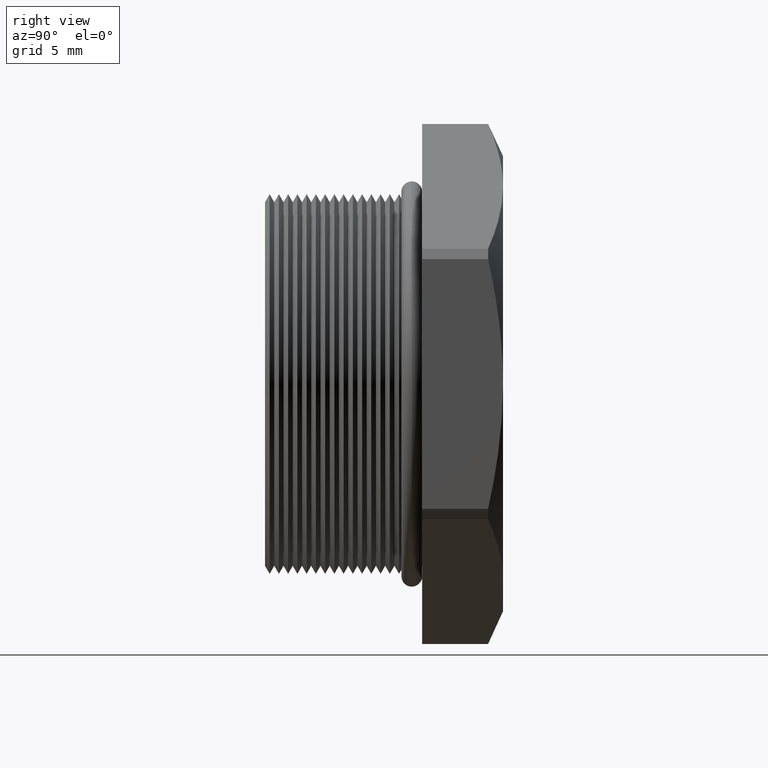
[diagram: clean part render]
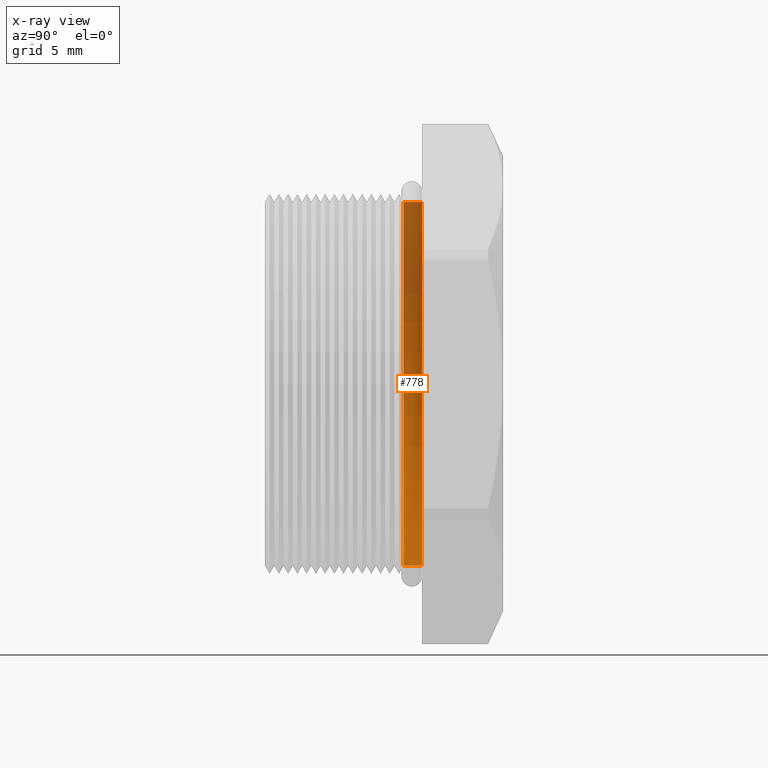
[diagram: x-ray — body ghosted, one internal face saturated and labeled with its STEP entity id]
A machine part, right view, then the same camera in x-ray: the body is ghosted and one INTERNAL B-rep face — a face not visible from any outside direction — is saturated and labeled: STEP entity #778.
In plain terms, the highlighted cylindrical surface (partial cylindrical patch) has radius 8.001 mm, axis along (-0, -1, -0).
Its self-contained STEP definition (entity closure, byte-faithful):
#141 = VERTEX_POINT ( 'NONE', #2686 ) ;
#143 = VERTEX_POINT ( 'NONE', #2748 ) ;
#147 = EDGE_CURVE ( 'NONE', #143, #336, #2741, .T. ) ;
#149 = EDGE_CURVE ( 'NONE', #141, #337, #2737, .T. ) ;
#336 = VERTEX_POINT ( 'NONE', #3105 ) ;
#337 = VERTEX_POINT ( 'NONE', #3104 ) ;
#757 = ORIENTED_EDGE ( 'NONE', *, *, #147, .T. ) ;
#758 = ORIENTED_EDGE ( 'NONE', *, *, #759, .F. ) ;
#759 = EDGE_CURVE ( 'NONE', #337, #336, #3960, .T. ) ;
#778 = ADVANCED_FACE ( 'NONE', ( #3989 ), #3988, .T. ) ;
#779 = EDGE_LOOP ( 'NONE', ( #780, #781, #757, #758 ) ) ;
#780 = ORIENTED_EDGE ( 'NONE', *, *, #149, .F. ) ;
#781 = ORIENTED_EDGE ( 'NONE', *, *, #782, .T. ) ;
#782 = EDGE_CURVE ( 'NONE', #141, #143, #3987, .T. ) ;
#2686 = CARTESIAN_POINT ( 'NONE',  ( 3.857637417314162700E-017, 0.2675548905829480100, 0.3150000000000000000 ) ) ;
#2734 = DIRECTION ( 'NONE',  ( -0.0000000000000000000, -1.000000000000000000, -0.0000000000000000000 ) ) ;
#2735 = VECTOR ( 'NONE', #2734, 39.37007874015748100 ) ;
#2736 = CARTESIAN_POINT ( 'NONE',  ( 3.857637417314162700E-017, 0.0000000000000000000, 0.3150000000000000000 ) ) ;
#2737 = LINE ( 'NONE', #2736, #2735 ) ;
#2738 = DIRECTION ( 'NONE',  ( -0.0000000000000000000, -1.000000000000000000, -0.0000000000000000000 ) ) ;
#2739 = VECTOR ( 'NONE', #2738, 39.37007874015748100 ) ;
#2740 = CARTESIAN_POINT ( 'NONE',  ( 0.0000000000000000000, 0.0000000000000000000, -0.3150000000000000000 ) ) ;
#2741 = LINE ( 'NONE', #2740, #2739 ) ;
#2748 = CARTESIAN_POINT ( 'NONE',  ( 0.0000000000000000000, 0.2675548905829480100, -0.3150000000000000000 ) ) ;
#3104 = CARTESIAN_POINT ( 'NONE',  ( 3.857637417314162700E-017, 0.2355072448100089300, 0.3150000000000000000 ) ) ;
#3105 = CARTESIAN_POINT ( 'NONE',  ( 0.0000000000000000000, 0.2355072448100089300, -0.3150000000000000000 ) ) ;
#3956 = DIRECTION ( 'NONE',  ( 0.0000000000000000000, 0.0000000000000000000, -1.000000000000000000 ) ) ;
#3957 = DIRECTION ( 'NONE',  ( 0.0000000000000000000, -1.000000000000000000, 0.0000000000000000000 ) ) ;
#3958 = CARTESIAN_POINT ( 'NONE',  ( 0.0000000000000000000, 0.2355072448100089300, 0.0000000000000000000 ) ) ;
#3959 = AXIS2_PLACEMENT_3D ( 'NONE', #3958, #3957, #3956 ) ;
#3960 = CIRCLE ( 'NONE', #3959, 0.3150000000000000000 ) ;
#3979 = DIRECTION ( 'NONE',  ( 0.0000000000000000000, 0.0000000000000000000, -1.000000000000000000 ) ) ;
#3980 = DIRECTION ( 'NONE',  ( -0.0000000000000000000, -1.000000000000000000, -0.0000000000000000000 ) ) ;
#3981 = CARTESIAN_POINT ( 'NONE',  ( 0.0000000000000000000, 0.2675548905829480100, 0.0000000000000000000 ) ) ;
#3982 = AXIS2_PLACEMENT_3D ( 'NONE', #3981, #3980, #3979 ) ;
#3983 = DIRECTION ( 'NONE',  ( 0.0000000000000000000, 0.0000000000000000000, -1.000000000000000000 ) ) ;
#3984 = DIRECTION ( 'NONE',  ( -0.0000000000000000000, -1.000000000000000000, -0.0000000000000000000 ) ) ;
#3985 = CARTESIAN_POINT ( 'NONE',  ( 0.0000000000000000000, 0.0000000000000000000, 0.0000000000000000000 ) ) ;
#3986 = AXIS2_PLACEMENT_3D ( 'NONE', #3985, #3984, #3983 ) ;
#3987 = CIRCLE ( 'NONE', #3982, 0.3150000000000000000 ) ;
#3988 = CYLINDRICAL_SURFACE ( 'NONE', #3986, 0.3150000000000000000 ) ;
#3989 = FACE_OUTER_BOUND ( 'NONE', #779, .T. ) ;